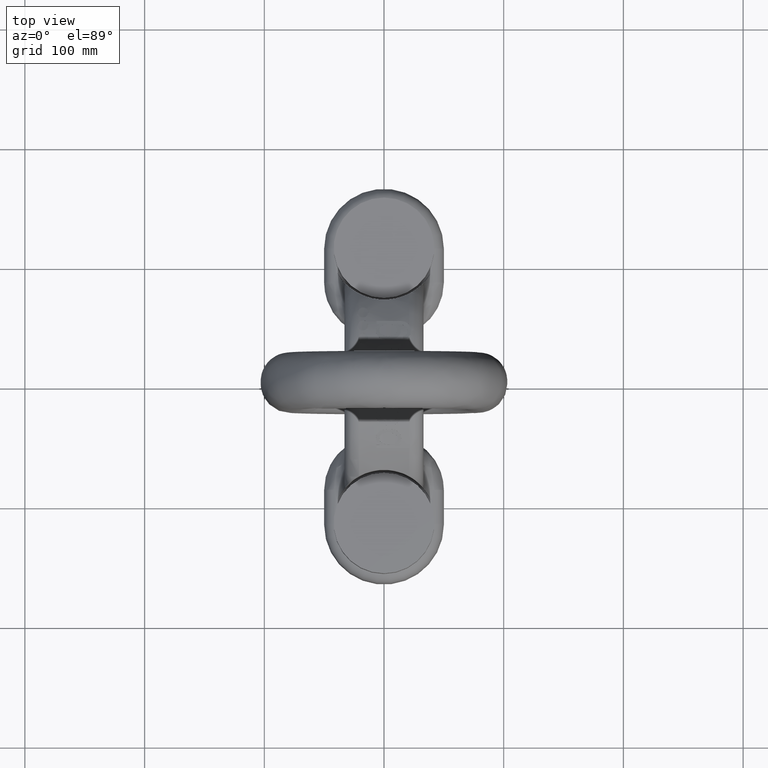
[diagram: clean part render]
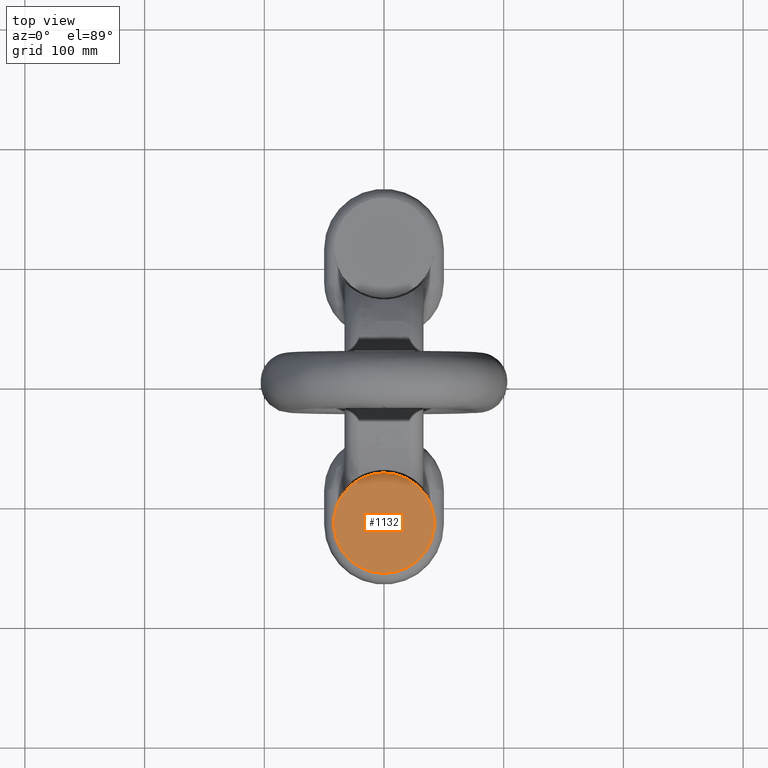
[diagram: same view with one face highlighted and labeled with its STEP entity id]
A machine part, top view. The second image highlights one B-rep face of the part: STEP entity #1132.
In plain terms, the highlighted planar face has unit normal (0, 0, -1).
Its self-contained STEP definition (entity closure, byte-faithful):
#793=PLANE('',#3687);
#970=FACE_OUTER_BOUND('',#1404,.T.);
#1132=ADVANCED_FACE('',(#970),#793,.F.);
#1404=EDGE_LOOP('',(#2741));
#2741=ORIENTED_EDGE('',*,*,#3416,.F.);
#3012=VERTEX_POINT('',#7746);
#3416=EDGE_CURVE('',#3012,#3012,#3495,.T.);
#3495=CIRCLE('',#3684,42.);
#3684=AXIS2_PLACEMENT_3D('',#7745,#4227,#4228);
#3687=AXIS2_PLACEMENT_3D('',#7750,#4233,#4234);
#4227=DIRECTION('',(0.,0.,-1.));
#4228=DIRECTION('',(1.83697019872103E-16,-1.,0.));
#4233=DIRECTION('',(0.,0.,-1.));
#4234=DIRECTION('',(-1.,0.,0.));
#7745=CARTESIAN_POINT('',(0.,-115.,79.));
#7746=CARTESIAN_POINT('',(7.71527483462833E-15,-157.,79.));
#7750=CARTESIAN_POINT('',(0.,-115.,79.));